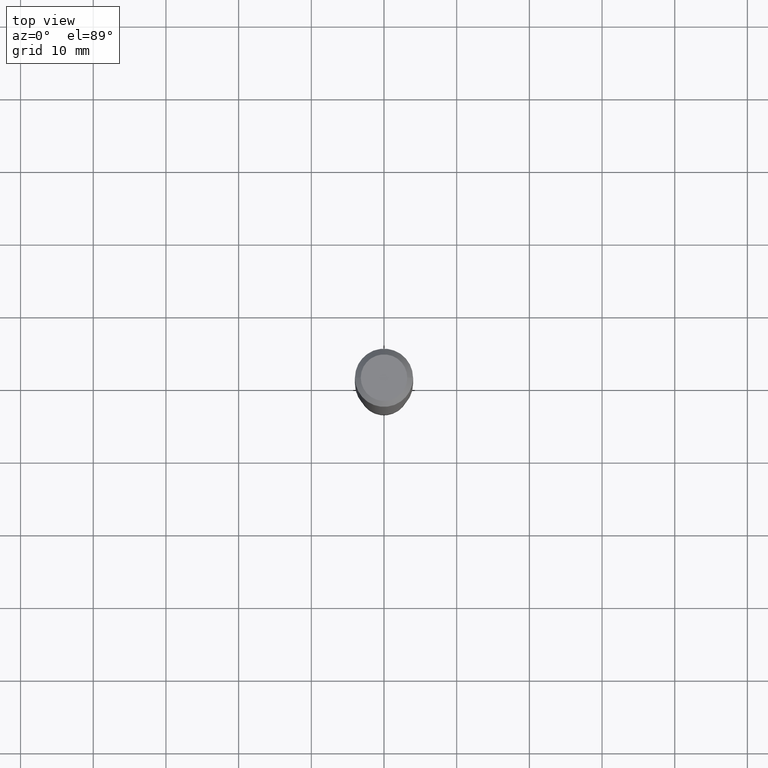
[diagram: clean part render]
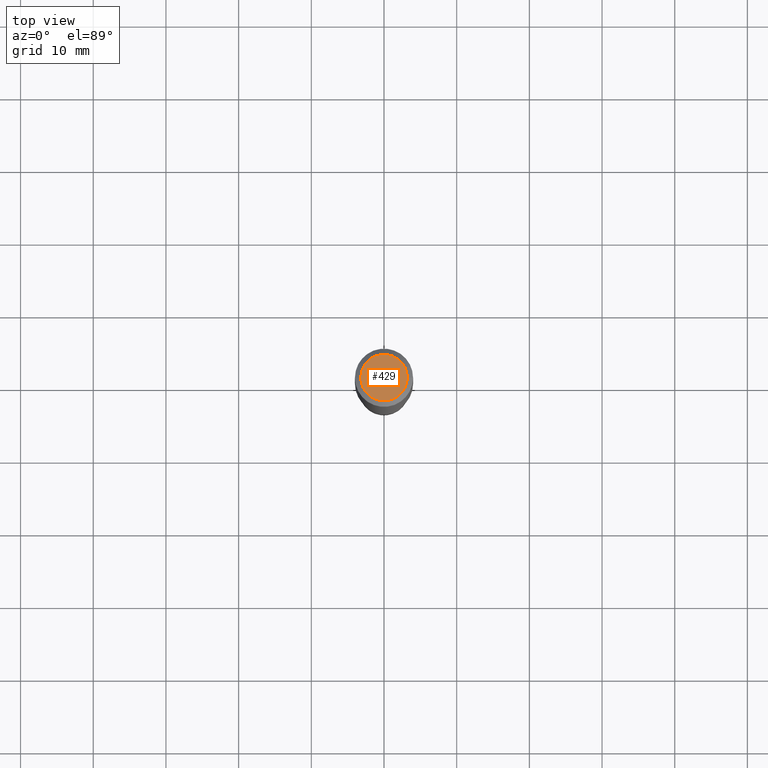
[diagram: same view with one face highlighted and labeled with its STEP entity id]
A machine part, top view. The second image highlights one B-rep face of the part: STEP entity #429.
In plain terms, the highlighted planar face has unit normal (0, -0, -1).
Its self-contained STEP definition (entity closure, byte-faithful):
#28 = DIRECTION ( 'NONE',  ( 1.000000000000000000, -6.982962677686265922E-15, 4.876281427513067258E-29 ) ) ;
#51 = DIRECTION ( 'NONE',  ( 1.000000000000000000, -6.982962677686265922E-15, 4.876281427513067258E-29 ) ) ;
#61 = CARTESIAN_POINT ( 'NONE',  ( -9.439721640706193907E-47, 1.347742071746725396E-32, 3.860086710912455880E-18 ) ) ;
#69 = CIRCLE ( 'NONE', #228, 0.1260000000000000009 ) ;
#103 = DIRECTION ( 'NONE',  ( 2.438088387897960049E-29, -3.491481338843145188E-15, -1.000000000000000000 ) ) ;
#119 = CIRCLE ( 'NONE', #461, 0.1260000000000000009 ) ;
#134 = VERTEX_POINT ( 'NONE', #224 ) ;
#142 = FACE_OUTER_BOUND ( 'NONE', #363, .T. ) ;
#160 = AXIS2_PLACEMENT_3D ( 'NONE', #457, #103, #378 ) ;
#161 = CARTESIAN_POINT ( 'NONE',  ( -9.439721640706193907E-47, 1.347742071746725396E-32, 3.860086710912455880E-18 ) ) ;
#174 = EDGE_CURVE ( 'NONE', #134, #239, #119, .T. ) ;
#181 = DIRECTION ( 'NONE',  ( -2.445468806185136597E-29, 3.491481338843145583E-15, 1.000000000000000000 ) ) ;
#201 = DIRECTION ( 'NONE',  ( -2.445468806185136597E-29, 3.491481338843145583E-15, 1.000000000000000000 ) ) ;
#222 = PLANE ( 'NONE',  #160 ) ;
#224 = CARTESIAN_POINT ( 'NONE',  ( -0.1260000000000000009, 9.348441284752482932E-16, 3.860086710906110326E-18 ) ) ;
#228 = AXIS2_PLACEMENT_3D ( 'NONE', #161, #201, #51 ) ;
#239 = VERTEX_POINT ( 'NONE', #300 ) ;
#257 = EDGE_CURVE ( 'NONE', #239, #134, #69, .T. ) ;
#300 = CARTESIAN_POINT ( 'NONE',  ( 0.1260000000000000009, -1.027466422270894640E-15, 3.860086710919124220E-18 ) ) ;
#322 = ORIENTED_EDGE ( 'NONE', *, *, #257, .T. ) ;
#363 = EDGE_LOOP ( 'NONE', ( #404, #322 ) ) ;
#378 = DIRECTION ( 'NONE',  ( -1.000000000000000000, 6.982962677686265922E-15, -4.876176775795935793E-29 ) ) ;
#404 = ORIENTED_EDGE ( 'NONE', *, *, #174, .T. ) ;
#429 = ADVANCED_FACE ( 'NONE', ( #142 ), #222, .F. ) ;
#457 = CARTESIAN_POINT ( 'NONE',  ( -4.719860820353096954E-47, 6.738710358733626979E-33, 1.930043355456227940E-18 ) ) ;
#461 = AXIS2_PLACEMENT_3D ( 'NONE', #61, #181, #28 ) ;